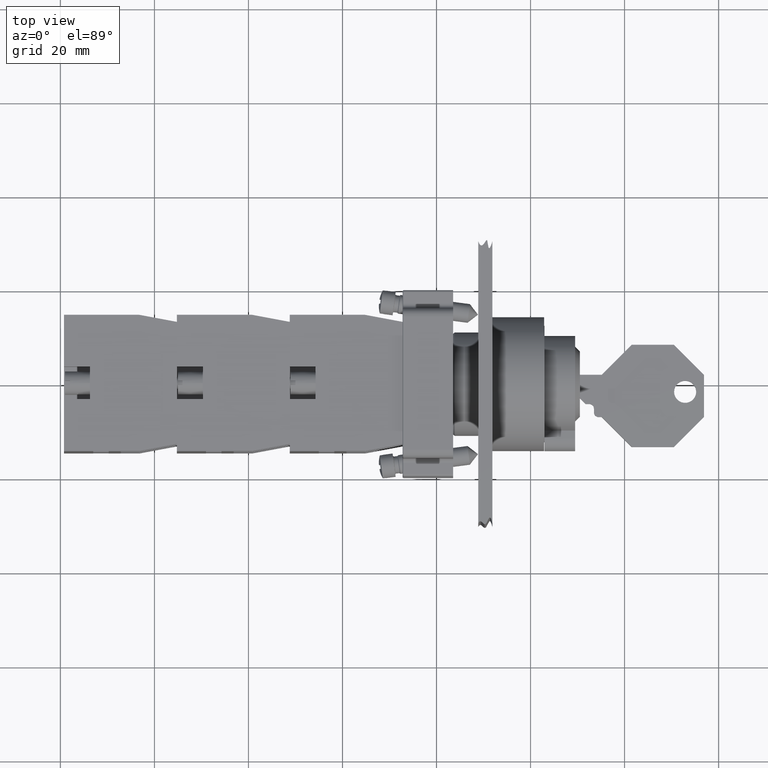
[diagram: clean part render]
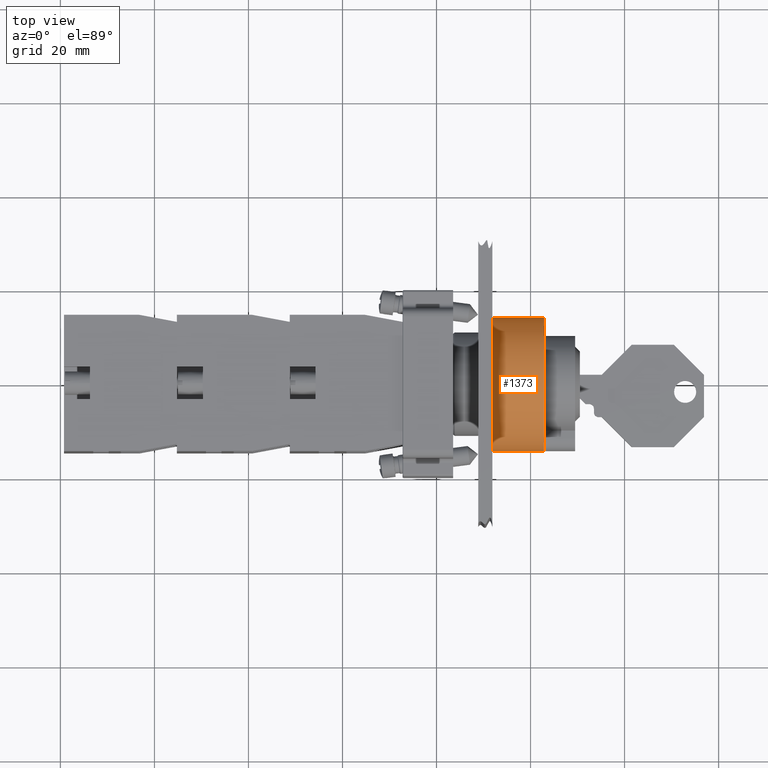
[diagram: same view with one face highlighted and labeled with its STEP entity id]
A machine part, top view. The second image highlights one B-rep face of the part: STEP entity #1373.
In plain terms, the highlighted cylindrical surface (bore or boss wall) has radius 14.25 mm, axis along (1, 0, 0).
Its self-contained STEP definition (entity closure, byte-faithful):
#1339=CARTESIAN_POINT('',(-8.120740052161070,14.173116139419630,0.0));
#1340=VERTEX_POINT('',#1339);
#1341=CARTESIAN_POINT('',(-8.120740052161070,-0.076883860580367,0.0));
#1342=DIRECTION('',(1.0,0.0,0.0));
#1343=DIRECTION('',(0.0,1.0,0.0));
#1344=AXIS2_PLACEMENT_3D('',#1341,#1342,#1343);
#1345=CIRCLE('',#1344,14.249999999999998);
#1346=EDGE_CURVE('',#1340,#1340,#1345,.T.);
#1354=CARTESIAN_POINT('',(-2.620740052161069,-0.076883860580367,0.0));
#1355=DIRECTION('',(1.0,4.693247E-018,0.0));
#1356=DIRECTION('',(0.0,1.0,0.0));
#1357=AXIS2_PLACEMENT_3D('',#1354,#1355,#1356);
#1358=CYLINDRICAL_SURFACE('',#1357,14.250000000000000);
#1359=CARTESIAN_POINT('',(2.879259947838931,14.173116139419633,0.0));
#1360=VERTEX_POINT('',#1359);
#1361=CARTESIAN_POINT('',(2.879259947838931,-0.076883860580367,0.0));
#1362=DIRECTION('',(1.0,0.0,0.0));
#1363=DIRECTION('',(0.0,1.0,0.0));
#1364=AXIS2_PLACEMENT_3D('',#1361,#1362,#1363);
#1365=CIRCLE('',#1364,14.250000000000000);
#1366=EDGE_CURVE('',#1360,#1360,#1365,.T.);
#1367=ORIENTED_EDGE('',*,*,#1366,.F.);
#1368=EDGE_LOOP('',(#1367));
#1369=FACE_OUTER_BOUND('',#1368,.T.);
#1370=ORIENTED_EDGE('',*,*,#1346,.T.);
#1371=EDGE_LOOP('',(#1370));
#1372=FACE_BOUND('',#1371,.T.);
#1373=ADVANCED_FACE('',(#1369,#1372),#1358,.T.);